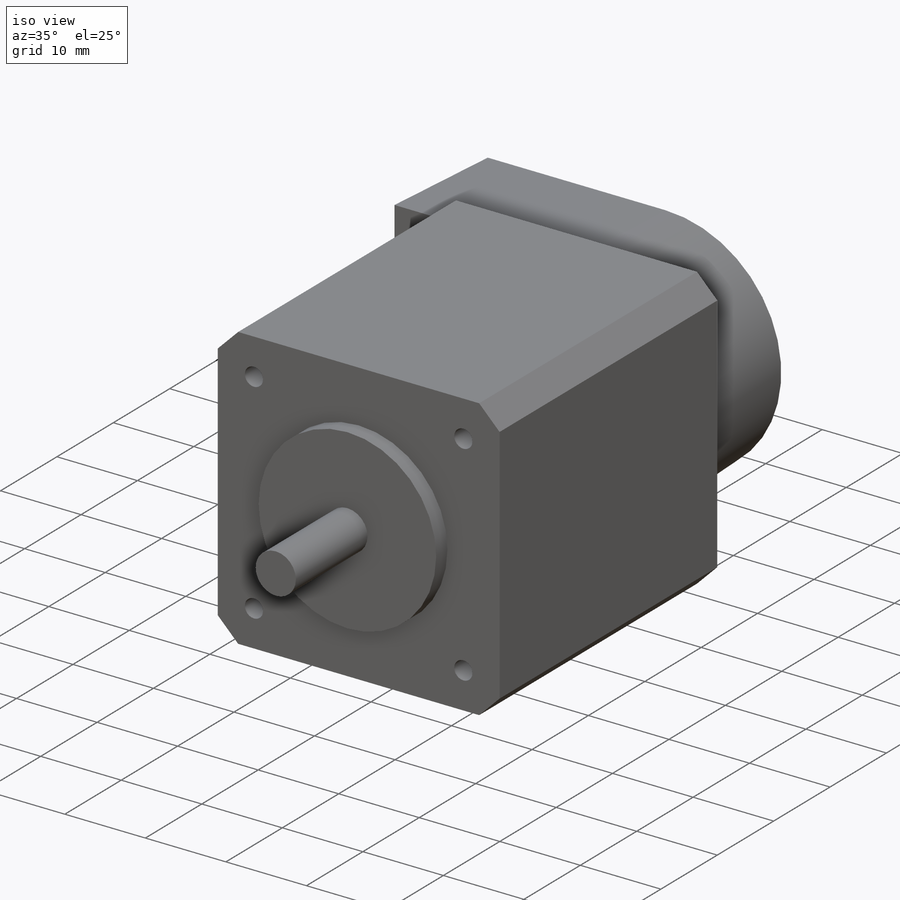
[diagram: iso view]
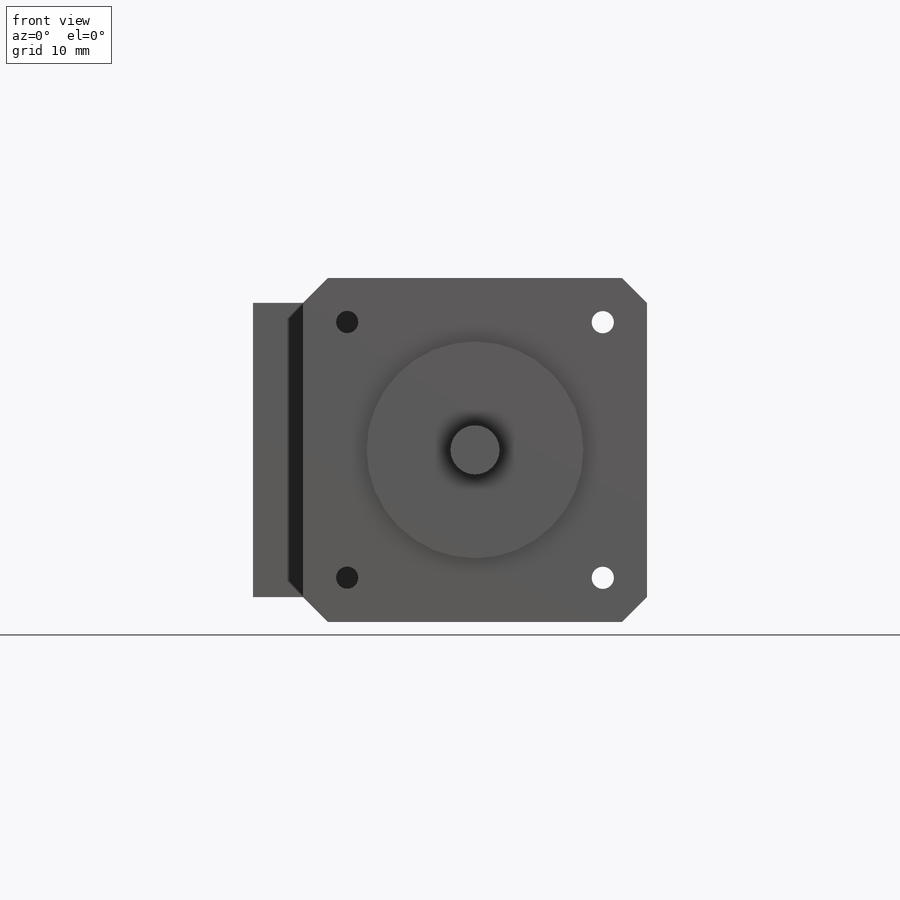
[diagram: front view]
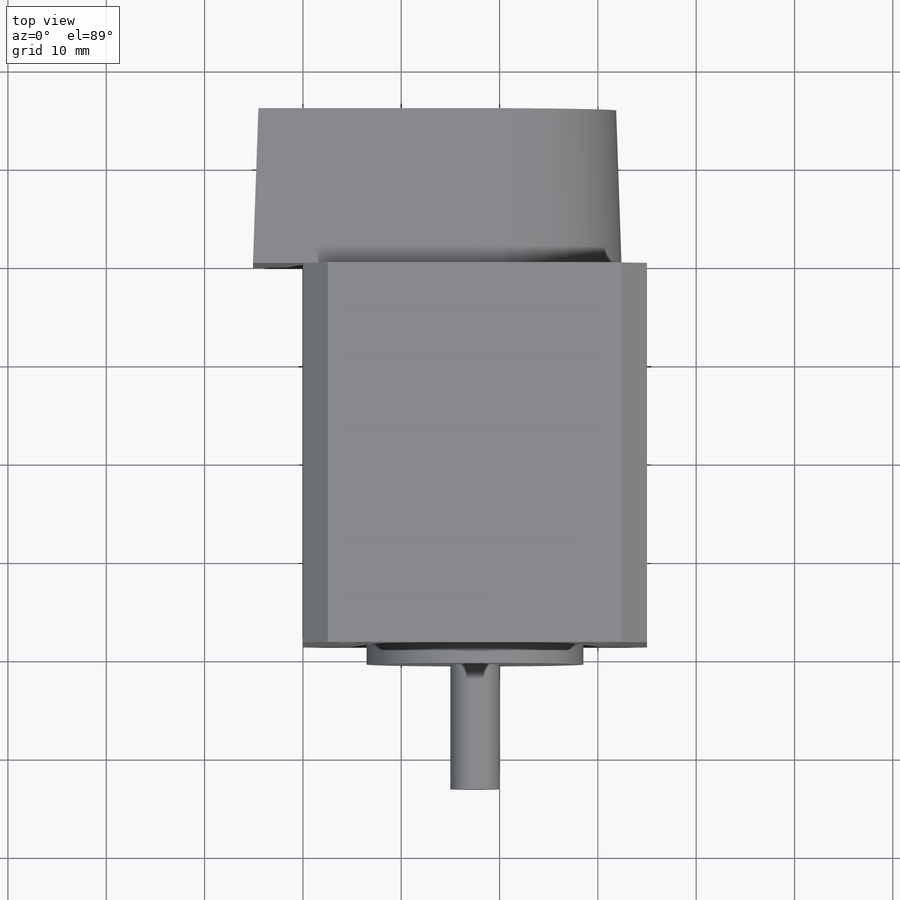
[diagram: top view]
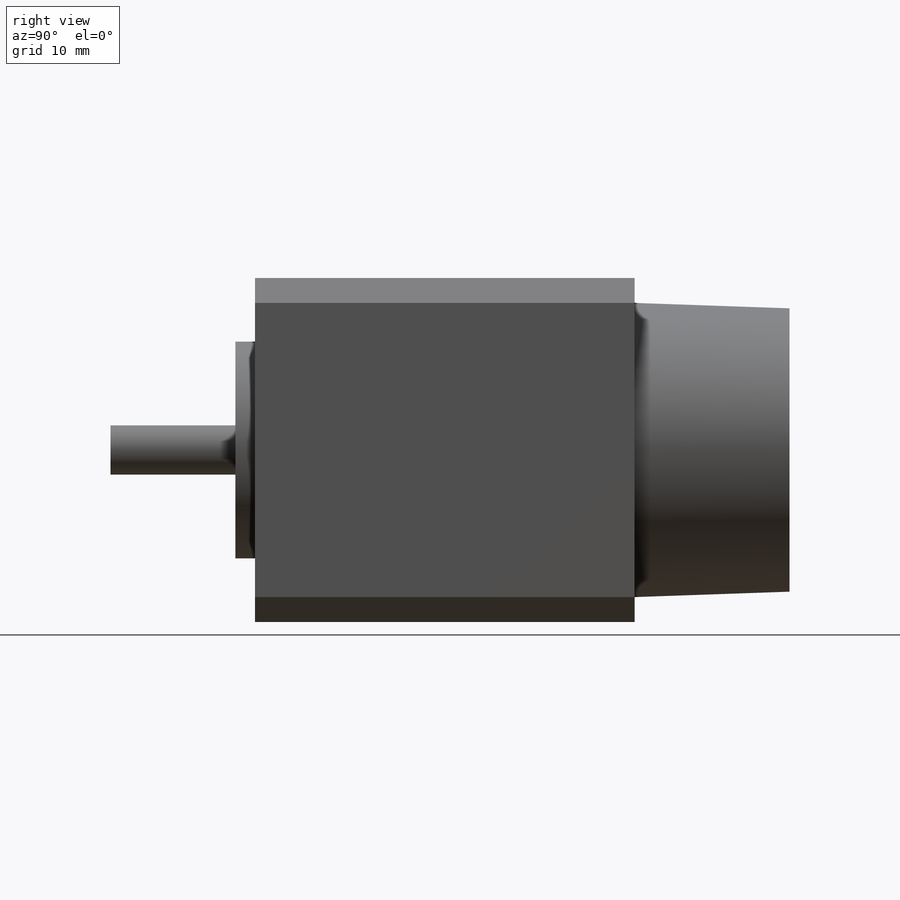
[diagram: right view]
SOLIDWORKS PART (.sldprt)
format: sldprt  version: not decoded by parser v0  size: 259,072 bytes
history: native  units: mm
features: sketch x6, extrude x4, thread x4, material x1, chamfer x1, hole x1 (+13 scaffold rows collapsed)
feature tree (30):
  scaffold x13  (default folders/planes/origin — collapsed)
  material  "Material <not specified>"
  sketch  "Sketch1"  dims[D1=35.0mm D2=35.0mm]
  extrude  "Boss-Extrude1"  Depth=38.608mm
  chamfer  "Chamfer1"  Distance=2.54mm Angle=45deg
  sketch  "Sketch2"  dims[D1=22.0472mm]
  extrude  "Boss-Extrude2"  Depth=2mm
  sketch  "Sketch3"  dims[D1=5.0mm]
  extrude  "Boss-Extrude3"  Depth=12.7mm
  hole  "#4-40 Tapped Hole1"  Diameter=2.2606mm Depth=38.608mm
  sketch  "Sketch5"  dims[c1.D2=5.0mm c1.D1=26.0mm c2.D2=13.0mm]
  sketch  "Sketch4"  dims[hole-wizard template sketch: 60 standard entries collapsed; hole parameters kept: c18.Thru Tap Drill Depth=38.608mm]
  thread  "Hole Thread1"  Diameter=2.8448mm  [1 undecoded]
  thread  "Hole Thread2"  Diameter=2.8448mm  [1 undecoded]
  thread  "Hole Thread3"  Diameter=2.8448mm  [1 undecoded]
  thread  "Hole Thread4"  Diameter=2.8448mm  [1 undecoded]
  sketch  "Sketch6"  dims[D1=2.54mm D2=2.54mm D3=2.54mm D4=5.08mm]
  extrude  "Boss-Extrude4"  Depth=15.748mm
decode coverage: 16 of 16 modeling features carry decoded parameters
note: ~ marks probable driven/reference dimensions
note: 4 parameter values undecoded
note: suppression state not decoded; provenance and decode notes live in map.json
